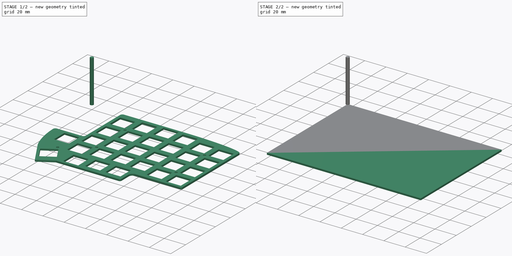
[diagram: build sequence overview — one tinted view per stage of 2, left to right]
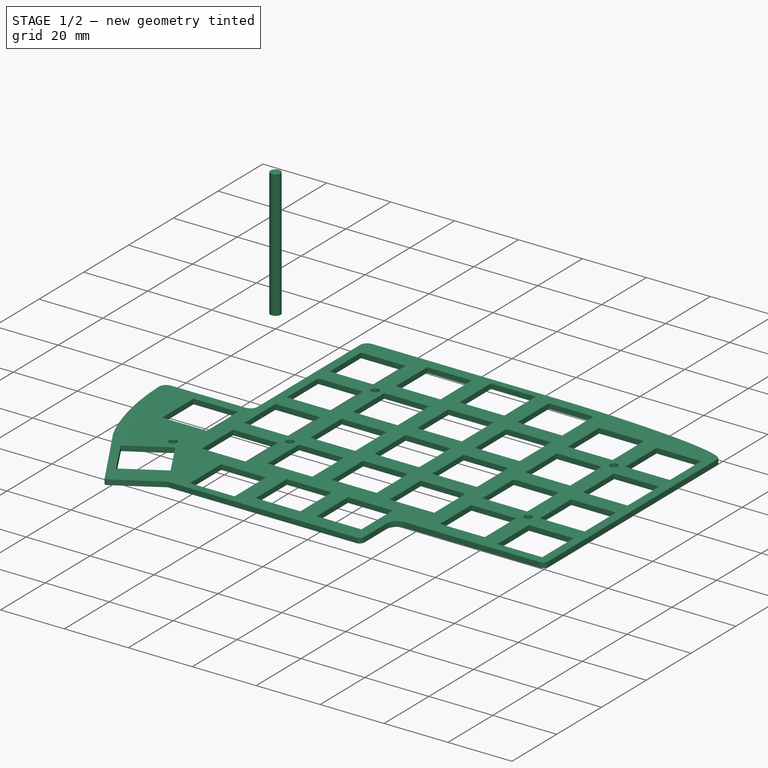
[diagram: stage 1 of 2 — iso view after this stage's code; geometry added in this stage tinted green]
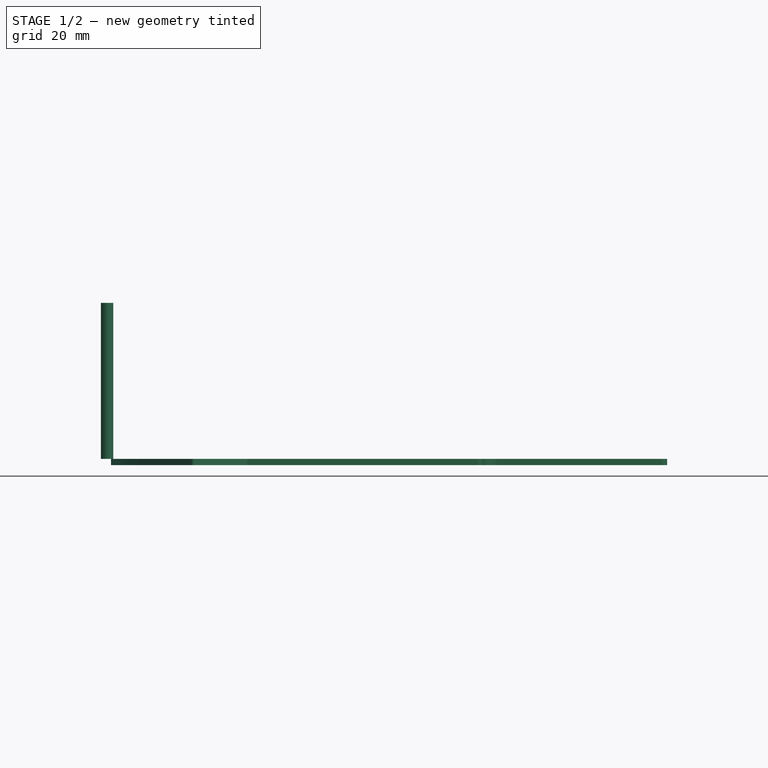
[diagram: stage 1 of 2 — front view after this stage's code; geometry added in this stage tinted green]
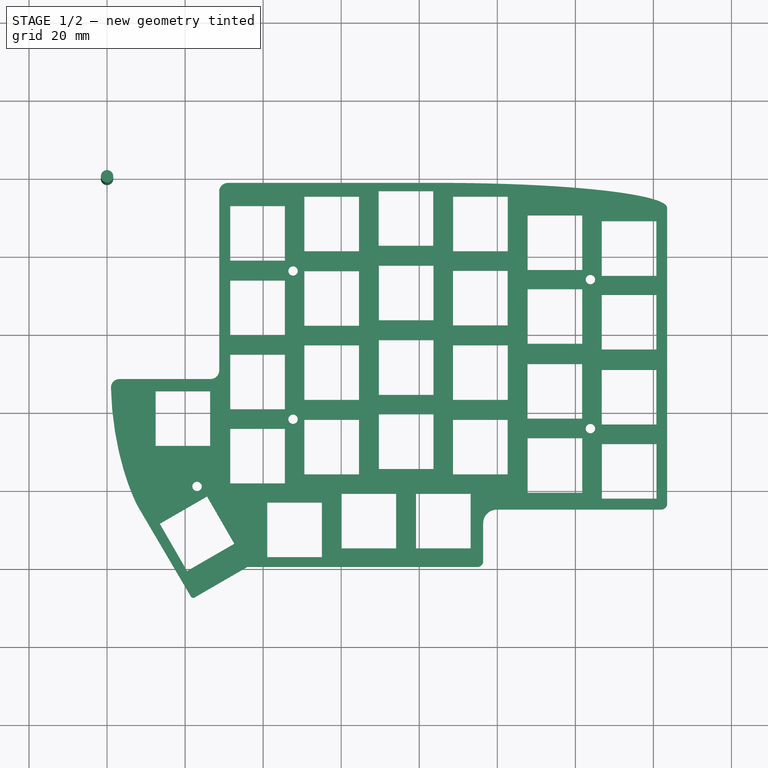
[diagram: stage 1 of 2 — top view after this stage's code; geometry added in this stage tinted green]
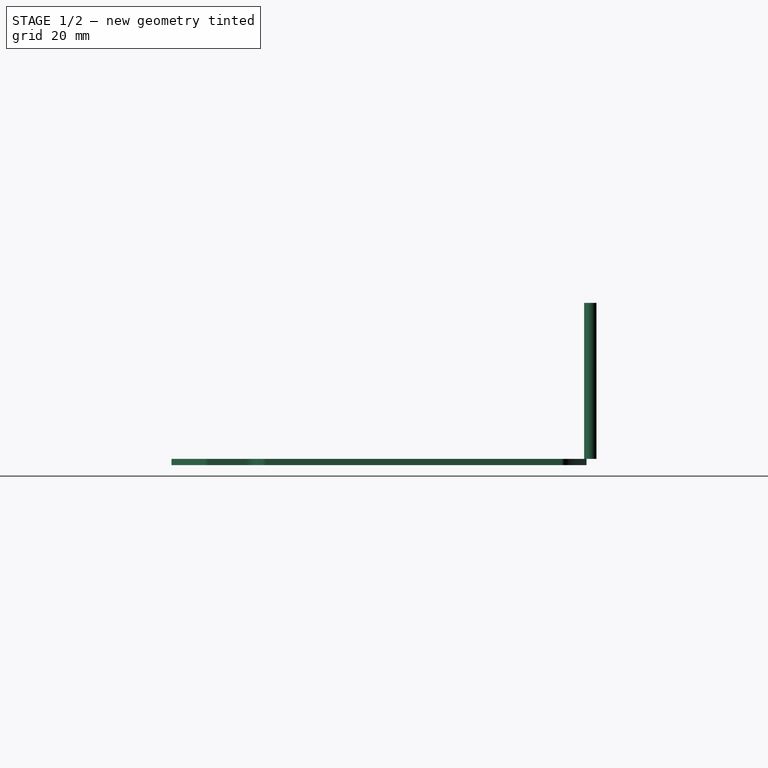
[diagram: stage 1 of 2 — right view after this stage's code; geometry added in this stage tinted green]
FCSTD DOCUMENT  (FreeCAD 0.19R0.19.1)
Label: Top_Plate
License: All rights reserved
LicenseURL: http://en.wikipedia.org/wiki/All_rights_reserved
objects: Path::FeaturePython×6, Part::FeaturePython×4, App::Part×3, App::DocumentObjectGroup×2, PartDesign::CoordinateSystem×1, Part::Feature×1, Sketcher::SketchObject×1, App::FeaturePython×1, Path::FeatureCompoundPython×1
note: 10 computed .brp shape members not serialized (recipe doc carries the construction recipe); baked Part::Feature solids carry a one-line shape summary decoded from their .brp

FEATURE [PartDesign::CoordinateSystem] Local_CS_fc3b
  AttacherType = Attacher::AttachEngine3D
FEATURE [Part::Feature] Pcb_fc3b
  shape: bbox 142.5 x 106.3 x 1.6 mm, 267 faces (baked)
FEATURE [Sketcher::SketchObject] PCB_Sketch_fc3b
  FullyConstrained = false
  sketch-geometry (260):
    g0: LineSegment StartX=112.247 StartY=-115.853 StartZ=0 EndX=112.277 EndY=-115.573 EndZ=0
    g1: LineSegment StartX=44.8131 StartY=-19.9689 StartZ=0 EndX=44.6404 EndY=-20.375 EndZ=0
    g2: LineSegment StartX=44.6404 StartY=-20.8392 StartZ=0 EndX=44.6404 EndY=-20.375 EndZ=0
    g3: LineSegment StartX=44.6404 StartY=-66.6835 StartZ=0 EndX=44.6404 EndY=-20.8392 EndZ=0
    g4: LineSegment StartX=46.3964 StartY=-18.6703 StartZ=0 EndX=45.9834 EndY=-18.7984 EndZ=0
    g5: LineSegment StartX=46.84 StartY=-18.6256 StartZ=0 EndX=46.3964 EndY=-18.6703 EndZ=0
    g6: LineSegment StartX=45.0158 StartY=-19.5951 StartZ=0 EndX=44.8131 EndY=-19.9689 EndZ=0
    g7: LineSegment StartX=45.2843 StartY=-19.2696 StartZ=0 EndX=45.0158 EndY=-19.5951 EndZ=0
    g8: LineSegment StartX=45.6098 StartY=-19.0011 StartZ=0 EndX=45.2843 EndY=-19.2696 EndZ=0
    g9: LineSegment StartX=45.9834 StartY=-18.7984 StartZ=0 EndX=45.6098 EndY=-19.0011 EndZ=0
    g10: LineSegment StartX=142.658 StartY=-42.4393 StartZ=0 EndX=142.658 EndY=-28.4389 EndZ=0
    g11: LineSegment StartX=142.658 StartY=-28.4389 StartZ=0 EndX=156.658 EndY=-28.4389 EndZ=0
    g12: LineSegment StartX=156.658 StartY=-42.4393 StartZ=0 EndX=142.658 EndY=-42.4393 EndZ=0
    g13: LineSegment StartX=156.658 StartY=-28.4389 StartZ=0 EndX=156.658 EndY=-42.4393 EndZ=0
    g14: LineSegment StartX=115.765 StartY=-18.8253 StartZ=0 EndX=112.947 EndY=-18.7545 EndZ=0
    g15: LineSegment StartX=118.528 StartY=-18.9108 StartZ=0 EndX=115.765 EndY=-18.8253 EndZ=0
    g16: LineSegment StartX=121.234 StartY=-19.0106 StartZ=0 EndX=118.528 EndY=-18.9108 EndZ=0
    g17: LineSegment StartX=159.418 StartY=-24.9756 StartZ=0 EndX=159.418 EndY=-100.829 EndZ=0
    g18: LineSegment StartX=104.207 StartY=-18.6339 StartZ=0 EndX=101.209 EndY=-18.6256 EndZ=0
    g19: LineSegment StartX=156.658 StartY=-61.3382 StartZ=0 EndX=142.658 EndY=-61.3382 EndZ=0
    g20: LineSegment StartX=158.22 StartY=-102.298 StartZ=0 EndX=157.918 EndY=-102.329 EndZ=0
    g21: LineSegment StartX=158.502 StartY=-102.211 StartZ=0 EndX=158.22 EndY=-102.298 EndZ=0
    g22: LineSegment StartX=131.404 StartY=-19.5443 StartZ=0 EndX=128.966 EndY=-19.3914 EndZ=0
    g23: LineSegment StartX=133.766 StartY=-19.7093 StartZ=0 EndX=131.404 EndY=-19.5443 EndZ=0
    g24: LineSegment StartX=136.047 StartY=-19.8863 StartZ=0 EndX=133.766 EndY=-19.7093 EndZ=0
    g25: LineSegment StartX=138.246 StartY=-20.0747 StartZ=0 EndX=136.047 EndY=-19.8863 EndZ=0
    g26: LineSegment StartX=140.358 StartY=-20.2742 StartZ=0 EndX=138.246 EndY=-20.0747 EndZ=0
    g27: LineSegment StartX=142.379 StartY=-20.4844 StartZ=0 EndX=140.358 EndY=-20.2742 EndZ=0
    g28: LineSegment StartX=144.305 StartY=-20.7049 StartZ=0 EndX=142.379 EndY=-20.4844 EndZ=0
    g29: LineSegment StartX=146.134 StartY=-20.9352 StartZ=0 EndX=144.305 EndY=-20.7049 EndZ=0
    g30: LineSegment StartX=147.862 StartY=-21.1751 StartZ=0 EndX=146.134 EndY=-20.9352 EndZ=0
    g31: LineSegment StartX=149.484 StartY=-21.424 StartZ=0 EndX=147.862 EndY=-21.1751 EndZ=0
    g32: LineSegment StartX=150.997 StartY=-21.6816 StartZ=0 EndX=149.484 EndY=-21.424 EndZ=0
    g33: LineSegment StartX=152.398 StartY=-21.9476 StartZ=0 EndX=150.997 EndY=-21.6816 EndZ=0
    g34: LineSegment StartX=153.682 StartY=-22.2214 StartZ=0 EndX=152.398 EndY=-21.9476 EndZ=0
    g35: LineSegment StartX=154.847 StartY=-22.5027 StartZ=0 EndX=153.682 EndY=-22.2214 EndZ=0
    g36: LineSegment StartX=155.889 StartY=-22.7911 StartZ=0 EndX=154.847 EndY=-22.5027 EndZ=0
    g37: LineSegment StartX=156.803 StartY=-23.0863 StartZ=0 EndX=155.889 EndY=-22.7911 EndZ=0
    g38: LineSegment StartX=157.587 StartY=-23.3877 StartZ=0 EndX=156.803 EndY=-23.0863 EndZ=0
    g39: LineSegment StartX=158.236 StartY=-23.695 StartZ=0 EndX=157.587 EndY=-23.3877 EndZ=0
    g40: LineSegment StartX=158.748 StartY=-24.0079 StartZ=0 EndX=158.236 EndY=-23.695 EndZ=0
    g41: LineSegment StartX=159.118 StartY=-24.3259 StartZ=0 EndX=158.748 EndY=-24.0079 EndZ=0
    g42: LineSegment StartX=159.342 StartY=-24.6486 StartZ=0 EndX=159.118 EndY=-24.3259 EndZ=0
    g43: LineSegment StartX=159.418 StartY=-24.9756 StartZ=0 EndX=159.342 EndY=-24.6486 EndZ=0
    g44: LineSegment StartX=142.658 StartY=-61.3382 StartZ=0 EndX=142.658 EndY=-47.3402 EndZ=0
    g45: LineSegment StartX=95.0595 StartY=-107.863 StartZ=0 EndX=95.0595 EndY=-98.29 EndZ=0
    g46: LineSegment StartX=109.06 StartY=-112.29 StartZ=0 EndX=95.0595 EndY=-112.29 EndZ=0
    g47: LineSegment StartX=107.165 StartY=-18.6584 StartZ=0 EndX=104.207 EndY=-18.6339 EndZ=0
    g48: LineSegment StartX=110.08 StartY=-18.6987 StartZ=0 EndX=107.165 EndY=-18.6584 EndZ=0
    g49: LineSegment StartX=112.947 StartY=-18.7545 StartZ=0 EndX=110.08 EndY=-18.6987 EndZ=0
    g50: LineSegment StartX=51.8211 StartY=-117.051 StartZ=0 EndX=110.777 EndY=-117.051 EndZ=0
    g51: LineSegment StartX=112.277 StartY=-105.829 StartZ=0 EndX=112.277 EndY=-115.573 EndZ=0
    g52: LineSegment StartX=111.08 StartY=-117.02 StartZ=0 EndX=110.777 EndY=-117.051 EndZ=0
    g53: LineSegment StartX=111.361 StartY=-116.933 StartZ=0 EndX=111.08 EndY=-117.02 EndZ=0
    g54: LineSegment StartX=111.616 StartY=-116.795 StartZ=0 EndX=111.361 EndY=-116.933 EndZ=0
    g55: LineSegment StartX=25.6325 StartY=-104.633 StartZ=0 EndX=27.3141 EndY=-107.494 EndZ=0
    g56: LineSegment StartX=23.9508 StartY=-101.771 StartZ=0 EndX=25.6325 EndY=-104.633 EndZ=0
    g57: LineSegment StartX=35.7225 StartY=-121.802 StartZ=0 EndX=37.4042 EndY=-124.663 EndZ=0
    g58: LineSegment StartX=34.0408 StartY=-118.94 StartZ=0 EndX=35.7225 EndY=-121.802 EndZ=0
    g59: LineSegment StartX=32.3592 StartY=-116.079 StartZ=0 EndX=34.0408 EndY=-118.94 EndZ=0
    g60: LineSegment StartX=30.6775 StartY=-113.217 StartZ=0 EndX=32.3592 EndY=-116.079 EndZ=0
    g61: LineSegment StartX=28.9958 StartY=-110.356 StartZ=0 EndX=30.6775 EndY=-113.217 EndZ=0
    g62: LineSegment StartX=27.3141 StartY=-107.494 StartZ=0 EndX=28.9958 EndY=-110.356 EndZ=0
    g63: LineSegment StartX=66.4601 StartY=-60.2406 StartZ=0 EndX=80.4603 EndY=-60.2406 EndZ=0
    g64: LineSegment StartX=66.4601 StartY=-74.2406 StartZ=0 EndX=66.4601 EndY=-60.2406 EndZ=0
    g65: LineSegment StartX=80.4603 StartY=-74.2406 StartZ=0 EndX=66.4601 EndY=-74.2406 EndZ=0
    g66: LineSegment StartX=80.4603 StartY=-79.3391 StartZ=0 EndX=80.4603 EndY=-93.3391 EndZ=0
    g67: LineSegment StartX=66.4601 StartY=-79.3391 StartZ=0 EndX=80.4603 EndY=-79.3391 EndZ=0
    g68: LineSegment StartX=66.4601 StartY=-93.3391 StartZ=0 EndX=66.4601 EndY=-79.3391 EndZ=0
    g69: LineSegment StartX=80.4603 StartY=-93.3391 StartZ=0 EndX=66.4601 EndY=-93.3391 EndZ=0
    g70: LineSegment StartX=70.9587 StartY=-100.539 StartZ=0 EndX=70.9587 EndY=-114.539 EndZ=0
    g71: LineSegment StartX=56.9585 StartY=-100.539 StartZ=0 EndX=70.9587 EndY=-100.539 EndZ=0
    g72: LineSegment StartX=56.9585 StartY=-114.539 StartZ=0 EndX=56.9585 EndY=-100.539 EndZ=0
    g73: LineSegment StartX=70.9587 StartY=-114.539 StartZ=0 EndX=56.9585 EndY=-114.539 EndZ=0
    g74: LineSegment StartX=89.9592 StartY=-98.2889 StartZ=0 EndX=89.9592 EndY=-112.289 EndZ=0
    g75: LineSegment StartX=75.959 StartY=-98.2889 StartZ=0 EndX=89.9592 EndY=-98.2889 EndZ=0
    g76: LineSegment StartX=75.959 StartY=-112.289 StartZ=0 EndX=75.959 EndY=-98.2889 EndZ=0
    g77: LineSegment StartX=89.9592 StartY=-112.289 StartZ=0 EndX=75.959 EndY=-112.289 EndZ=0
    g78: LineSegment StartX=99.559 StartY=-77.9385 StartZ=0 EndX=99.559 EndY=-91.9385 EndZ=0
    g79: LineSegment StartX=85.5588 StartY=-77.9385 StartZ=0 EndX=99.559 EndY=-77.9385 EndZ=0
    g80: LineSegment StartX=85.5588 StartY=-91.9385 StartZ=0 EndX=85.5588 EndY=-77.9385 EndZ=0
    g81: LineSegment StartX=99.559 StartY=-91.9385 StartZ=0 EndX=85.5588 EndY=-91.9385 EndZ=0
    g82: LineSegment StartX=99.5601 StartY=-58.9383 StartZ=0 EndX=99.5601 EndY=-72.9383 EndZ=0
    g83: LineSegment StartX=85.56 StartY=-58.9383 StartZ=0 EndX=99.5601 EndY=-58.9383 EndZ=0
    g84: LineSegment StartX=85.56 StartY=-72.9383 StartZ=0 EndX=85.56 EndY=-58.9383 EndZ=0
    g85: LineSegment StartX=99.5601 StartY=-72.9383 StartZ=0 EndX=85.56 EndY=-72.9383 EndZ=0
    g86: LineSegment StartX=99.5601 StartY=-39.8401 StartZ=0 EndX=99.5601 EndY=-53.8401 EndZ=0
    g87: LineSegment StartX=85.56 StartY=-39.8401 StartZ=0 EndX=99.5601 EndY=-39.8401 EndZ=0
    g88: LineSegment StartX=85.56 StartY=-53.8401 StartZ=0 EndX=85.56 EndY=-39.8401 EndZ=0
    g89: LineSegment StartX=99.5601 StartY=-53.8401 StartZ=0 EndX=85.56 EndY=-53.8401 EndZ=0
    g90: LineSegment StartX=99.4893 StartY=-20.7495 StartZ=0 EndX=99.4893 EndY=-34.7495 EndZ=0
    g91: LineSegment StartX=85.4891 StartY=-20.7495 StartZ=0 EndX=99.4893 EndY=-20.7495 EndZ=0
    g92: LineSegment StartX=85.4891 StartY=-34.7495 StartZ=0 EndX=85.4891 EndY=-20.7495 EndZ=0
    g93: LineSegment StartX=99.4893 StartY=-34.7495 StartZ=0 EndX=85.4891 EndY=-34.7495 EndZ=0
    g94: LineSegment StartX=118.564 StartY=-22.1389 StartZ=0 EndX=118.564 EndY=-36.1389 EndZ=0
    g95: LineSegment StartX=104.564 StartY=-22.1389 StartZ=0 EndX=118.564 EndY=-22.1389 EndZ=0
    g96: LineSegment StartX=104.564 StartY=-36.1389 StartZ=0 EndX=104.564 EndY=-22.1389 EndZ=0
    g97: LineSegment StartX=118.564 StartY=-36.1389 StartZ=0 EndX=104.564 EndY=-36.1389 EndZ=0
    g98: LineSegment StartX=118.558 StartY=-41.1391 StartZ=0 EndX=118.558 EndY=-55.1391 EndZ=0
    g99: LineSegment StartX=104.558 StartY=-41.1391 StartZ=0 EndX=118.558 EndY=-41.1391 EndZ=0
    g100: LineSegment StartX=104.558 StartY=-55.1391 StartZ=0 EndX=104.558 EndY=-41.1391 EndZ=0
    g101: LineSegment StartX=118.558 StartY=-55.1391 StartZ=0 EndX=104.558 EndY=-55.1391 EndZ=0
    g102: LineSegment StartX=118.56 StartY=-60.2383 StartZ=0 EndX=118.56 EndY=-74.2384 EndZ=0
    g103: LineSegment StartX=104.56 StartY=-60.2383 StartZ=0 EndX=118.56 EndY=-60.2383 EndZ=0
    g104: LineSegment StartX=104.56 StartY=-74.2384 StartZ=0 EndX=104.56 EndY=-60.2383 EndZ=0
    g105: LineSegment StartX=118.56 StartY=-74.2384 StartZ=0 EndX=104.56 EndY=-74.2384 EndZ=0
    g106: LineSegment StartX=118.559 StartY=-79.3393 StartZ=0 EndX=118.559 EndY=-93.3393 EndZ=0
    g107: LineSegment StartX=104.559 StartY=-79.3393 StartZ=0 EndX=118.559 EndY=-79.3393 EndZ=0
    g108: LineSegment StartX=104.559 StartY=-93.3393 StartZ=0 EndX=104.559 EndY=-79.3393 EndZ=0
    g109: LineSegment StartX=118.559 StartY=-93.3393 StartZ=0 EndX=104.559 EndY=-93.3393 EndZ=0
    g110: LineSegment StartX=137.659 StartY=-45.8395 StartZ=0 EndX=137.659 EndY=-59.8396 EndZ=0
    g111: LineSegment StartX=123.659 StartY=-45.8395 StartZ=0 EndX=137.659 EndY=-45.8395 EndZ=0
    g112: LineSegment StartX=123.659 StartY=-59.8396 StartZ=0 EndX=123.659 EndY=-45.8395 EndZ=0
    g113: LineSegment StartX=137.659 StartY=-59.8396 StartZ=0 EndX=123.659 EndY=-59.8396 EndZ=0
    g114: LineSegment StartX=137.645 StartY=-65.0394 StartZ=0 EndX=137.645 EndY=-79.0394 EndZ=0
    g115: LineSegment StartX=123.645 StartY=-65.0394 StartZ=0 EndX=137.645 EndY=-65.0394 EndZ=0
    g116: LineSegment StartX=123.645 StartY=-79.0394 StartZ=0 EndX=123.645 EndY=-65.0394 EndZ=0
    g117: LineSegment StartX=137.645 StartY=-79.0394 StartZ=0 EndX=123.645 EndY=-79.0394 EndZ=0
    g118: LineSegment StartX=137.66 StartY=-84.0383 StartZ=0 EndX=137.66 EndY=-98.0383 EndZ=0
    g119: LineSegment StartX=123.66 StartY=-84.0383 StartZ=0 EndX=137.66 EndY=-84.0383 EndZ=0
    g120: LineSegment StartX=123.66 StartY=-98.0383 StartZ=0 EndX=123.66 EndY=-84.0383 EndZ=0
    g121: LineSegment StartX=137.66 StartY=-98.0383 StartZ=0 EndX=123.66 EndY=-98.0383 EndZ=0
    g122: LineSegment StartX=137.66 StartY=-26.9394 StartZ=0 EndX=137.66 EndY=-40.9395 EndZ=0
    g123: LineSegment StartX=123.66 StartY=-26.9394 StartZ=0 EndX=137.66 EndY=-26.9394 EndZ=0
    g124: LineSegment StartX=123.66 StartY=-40.9395 StartZ=0 EndX=123.66 EndY=-26.9394 EndZ=0
    g125: LineSegment StartX=137.66 StartY=-40.9395 StartZ=0 EndX=123.66 EndY=-40.9395 EndZ=0
    g126: LineSegment StartX=101.209 StartY=-18.6256 StartZ=0 EndX=46.84 EndY=-18.6256 EndZ=0
    g127: LineSegment StartX=23.802 StartY=-101.49 StartZ=0 EndX=23.9508 EndY=-101.771 EndZ=0
    g128: LineSegment StartX=23.6528 StartY=-101.208 StartZ=0 EndX=23.802 EndY=-101.49 EndZ=0
    g129: LineSegment StartX=23.5035 StartY=-100.927 StartZ=0 EndX=23.6528 EndY=-101.208 EndZ=0
    g130: LineSegment StartX=23.3543 StartY=-100.645 StartZ=0 EndX=23.5035 EndY=-100.927 EndZ=0
    g131: LineSegment StartX=23.1259 StartY=-100.141 StartZ=0 EndX=23.3543 EndY=-100.645 EndZ=0
    g132: LineSegment StartX=22.8976 StartY=-99.6367 StartZ=0 EndX=23.1259 EndY=-100.141 EndZ=0
    g133: LineSegment StartX=22.6692 StartY=-99.1324 StartZ=0 EndX=22.8976 EndY=-99.6367 EndZ=0
    g134: LineSegment StartX=22.4408 StartY=-98.6281 StartZ=0 EndX=22.6692 EndY=-99.1324 EndZ=0
    g135: LineSegment StartX=22.1625 StartY=-97.9114 StartZ=0 EndX=22.4408 EndY=-98.6281 EndZ=0
    g136: LineSegment StartX=21.8841 StartY=-97.1947 StartZ=0 EndX=22.1625 EndY=-97.9114 EndZ=0
    g137: LineSegment StartX=21.6058 StartY=-96.478 StartZ=0 EndX=21.8841 EndY=-97.1947 EndZ=0
    g138: LineSegment StartX=21.3274 StartY=-95.7613 StartZ=0 EndX=21.6058 EndY=-96.478 EndZ=0
    g139: LineSegment StartX=21.0283 StartY=-94.8426 StartZ=0 EndX=21.3274 EndY=-95.7613 EndZ=0
    g140: LineSegment StartX=20.7291 StartY=-93.9239 StartZ=0 EndX=21.0283 EndY=-94.8426 EndZ=0
    g141: LineSegment StartX=20.4299 StartY=-93.0053 StartZ=0 EndX=20.7291 EndY=-93.9239 EndZ=0
    g142: LineSegment StartX=20.1307 StartY=-92.0866 StartZ=0 EndX=20.4299 EndY=-93.0053 EndZ=0
    g143: LineSegment StartX=19.8399 StartY=-90.9763 StartZ=0 EndX=20.1307 EndY=-92.0866 EndZ=0
    g144: LineSegment StartX=19.5491 StartY=-89.866 StartZ=0 EndX=19.8399 EndY=-90.9763 EndZ=0
    g145: LineSegment StartX=19.2582 StartY=-88.7558 StartZ=0 EndX=19.5491 EndY=-89.866 EndZ=0
    g146: LineSegment StartX=18.9674 StartY=-87.6455 StartZ=0 EndX=19.2582 EndY=-88.7558 EndZ=0
    g147: LineSegment StartX=18.714 StartY=-86.3541 StartZ=0 EndX=18.9674 EndY=-87.6455 EndZ=0
    g148: LineSegment StartX=18.4607 StartY=-85.0626 StartZ=0 EndX=18.714 EndY=-86.3541 EndZ=0
    g149: LineSegment StartX=18.2073 StartY=-83.7712 StartZ=0 EndX=18.4607 EndY=-85.0626 EndZ=0
    g150: LineSegment StartX=17.9539 StartY=-82.4798 StartZ=0 EndX=18.2073 EndY=-83.7712 EndZ=0
    g151: LineSegment StartX=17.7672 StartY=-81.0176 StartZ=0 EndX=17.9539 EndY=-82.4798 EndZ=0
    g152: LineSegment StartX=17.5805 StartY=-79.5554 StartZ=0 EndX=17.7672 EndY=-81.0176 EndZ=0
    g153: LineSegment StartX=17.3938 StartY=-78.0932 StartZ=0 EndX=17.5805 EndY=-79.5554 EndZ=0
    g154: LineSegment StartX=17.2071 StartY=-76.631 StartZ=0 EndX=17.3938 EndY=-78.0932 EndZ=0
    g155: LineSegment StartX=17.1294 StartY=-75.2447 StartZ=0 EndX=17.2071 EndY=-76.631 EndZ=0
    g156: LineSegment StartX=17.0517 StartY=-73.8584 StartZ=0 EndX=17.1294 EndY=-75.2447 EndZ=0
    g157: LineSegment StartX=16.974 StartY=-72.472 StartZ=0 EndX=17.0517 EndY=-73.8584 EndZ=0
    g158: LineSegment StartX=16.8963 StartY=-71.0857 StartZ=0 EndX=16.974 EndY=-72.472 EndZ=0
    g159: LineSegment StartX=38.234 StartY=-124.91 StartZ=0 EndX=38.4147 EndY=-124.811 EndZ=0
    g160: LineSegment StartX=38.1065 StartY=-124.952 StartZ=0 EndX=38.234 EndY=-124.91 EndZ=0
    g161: LineSegment StartX=37.983 StartY=-124.962 StartZ=0 EndX=38.1065 EndY=-124.952 EndZ=0
    g162: LineSegment StartX=37.869 StartY=-124.961 StartZ=0 EndX=37.983 EndY=-124.962 EndZ=0
    g163: LineSegment StartX=37.7614 StartY=-124.928 StartZ=0 EndX=37.869 EndY=-124.961 EndZ=0
    g164: LineSegment StartX=37.6503 StartY=-124.876 StartZ=0 EndX=37.7614 EndY=-124.928 EndZ=0
    g165: LineSegment StartX=37.4998 StartY=-124.782 StartZ=0 EndX=37.6503 EndY=-124.876 EndZ=0
    g166: LineSegment StartX=37.4042 StartY=-124.663 StartZ=0 EndX=37.4998 EndY=-124.782 EndZ=0
    g167: LineSegment StartX=50.1445 StartY=-118.02 StartZ=0 EndX=51.8211 EndY=-117.051 EndZ=0
    g168: LineSegment StartX=48.4688 StartY=-118.99 StartZ=0 EndX=50.1445 EndY=-118.02 EndZ=0
    g169: LineSegment StartX=46.7931 StartY=-119.96 StartZ=0 EndX=48.4688 EndY=-118.99 EndZ=0
    g170: LineSegment StartX=45.1175 StartY=-120.93 StartZ=0 EndX=46.7931 EndY=-119.96 EndZ=0
    g171: LineSegment StartX=43.4418 StartY=-121.9 StartZ=0 EndX=45.1175 EndY=-120.93 EndZ=0
    g172: LineSegment StartX=41.7661 StartY=-122.87 StartZ=0 EndX=43.4418 EndY=-121.9 EndZ=0
    g173: LineSegment StartX=40.0904 StartY=-123.84 StartZ=0 EndX=41.7661 EndY=-122.87 EndZ=0
    g174: LineSegment StartX=38.4147 StartY=-124.811 StartZ=0 EndX=40.0904 EndY=-123.84 EndZ=0
    g175: LineSegment StartX=66.4592 StartY=-41.2396 StartZ=0 EndX=80.4594 EndY=-41.2396 EndZ=0
    g176: LineSegment StartX=66.4592 StartY=-55.2396 StartZ=0 EndX=66.4592 EndY=-41.2396 EndZ=0
    g177: LineSegment StartX=80.4594 StartY=-55.2396 StartZ=0 EndX=66.4592 EndY=-55.2396 EndZ=0
    g178: LineSegment StartX=80.4603 StartY=-60.2406 StartZ=0 EndX=80.4603 EndY=-74.2406 EndZ=0
    g179: LineSegment StartX=80.4594 StartY=-36.1389 StartZ=0 EndX=66.4592 EndY=-36.1389 EndZ=0
    g180: LineSegment StartX=80.4594 StartY=-41.2396 StartZ=0 EndX=80.4594 EndY=-55.2396 EndZ=0
    g181: LineSegment StartX=61.4591 StartY=-24.5391 StartZ=0 EndX=61.4591 EndY=-38.5392 EndZ=0
    g182: LineSegment StartX=47.4589 StartY=-24.5391 StartZ=0 EndX=61.4591 EndY=-24.5391 EndZ=0
    g183: LineSegment StartX=47.4589 StartY=-38.5392 StartZ=0 EndX=47.4589 EndY=-24.5391 EndZ=0
    g184: LineSegment StartX=61.4591 StartY=-38.5392 StartZ=0 EndX=47.4589 EndY=-38.5392 EndZ=0
    g185: LineSegment StartX=80.4594 StartY=-22.1389 StartZ=0 EndX=80.4594 EndY=-36.1389 EndZ=0
    g186: LineSegment StartX=66.4592 StartY=-22.1389 StartZ=0 EndX=80.4594 EndY=-22.1389 EndZ=0
    g187: LineSegment StartX=66.4592 StartY=-36.1389 StartZ=0 EndX=66.4592 EndY=-22.1389 EndZ=0
    g188: LineSegment StartX=61.4601 StartY=-43.6405 StartZ=0 EndX=61.4601 EndY=-57.6405 EndZ=0
    g189: LineSegment StartX=47.4599 StartY=-43.6405 StartZ=0 EndX=61.4601 EndY=-43.6405 EndZ=0
    g190: LineSegment StartX=47.4599 StartY=-57.6405 StartZ=0 EndX=47.4599 EndY=-43.6405 EndZ=0
    g191: LineSegment StartX=61.4601 StartY=-57.6405 StartZ=0 EndX=47.4599 EndY=-57.6405 EndZ=0
    g192: LineSegment StartX=19.0957 StartY=-68.8834 StartZ=0 EndX=42.4408 EndY=-68.8836 EndZ=0
    g193: LineSegment StartX=42.3115 StartY=-72.0394 StartZ=0 EndX=42.3115 EndY=-86.0394 EndZ=0
    g194: LineSegment StartX=28.3593 StartY=-72.0394 StartZ=0 EndX=42.3115 EndY=-72.0394 EndZ=0
    g195: LineSegment StartX=28.3593 StartY=-86.0394 StartZ=0 EndX=28.3593 EndY=-72.0394 EndZ=0
    g196: LineSegment StartX=42.3115 StartY=-86.0394 StartZ=0 EndX=28.3593 EndY=-86.0394 EndZ=0
    g197: LineSegment StartX=41.5217 StartY=-98.9766 StartZ=0 EndX=48.5218 EndY=-111.101 EndZ=0
    g198: LineSegment StartX=29.3972 StartY=-105.977 StartZ=0 EndX=41.5217 EndY=-98.9766 EndZ=0
    g199: LineSegment StartX=36.3972 StartY=-118.101 StartZ=0 EndX=29.3972 EndY=-105.977 EndZ=0
    g200: LineSegment StartX=48.5218 StartY=-111.101 StartZ=0 EndX=36.3972 EndY=-118.101 EndZ=0
    g201: LineSegment StartX=61.4591 StartY=-81.6406 StartZ=0 EndX=61.4591 EndY=-95.6406 EndZ=0
    g202: LineSegment StartX=47.4589 StartY=-81.6406 StartZ=0 EndX=61.4591 EndY=-81.6406 EndZ=0
    g203: LineSegment StartX=47.4589 StartY=-95.6406 StartZ=0 EndX=47.4589 EndY=-81.6406 EndZ=0
    g204: LineSegment StartX=61.4591 StartY=-95.6406 StartZ=0 EndX=47.4589 EndY=-95.6406 EndZ=0
    g205: LineSegment StartX=61.4591 StartY=-62.6376 StartZ=0 EndX=61.4591 EndY=-76.6376 EndZ=0
    g206: LineSegment StartX=47.4589 StartY=-62.6376 StartZ=0 EndX=61.4591 EndY=-62.6376 EndZ=0
    g207: LineSegment StartX=47.4589 StartY=-76.6376 StartZ=0 EndX=47.4589 EndY=-62.6376 EndZ=0
    g208: LineSegment StartX=61.4591 StartY=-76.6376 StartZ=0 EndX=47.4589 EndY=-76.6376 EndZ=0
    g209: LineSegment StartX=44.4677 StartY=-67.5403 StartZ=0 EndX=44.5958 EndY=-67.1272 EndZ=0
    g210: LineSegment StartX=44.265 StartY=-67.914 StartZ=0 EndX=44.4677 EndY=-67.5403 EndZ=0
    g211: LineSegment StartX=43.9965 StartY=-68.2395 StartZ=0 EndX=44.265 EndY=-67.914 EndZ=0
    g212: LineSegment StartX=43.6711 StartY=-68.508 StartZ=0 EndX=43.9965 EndY=-68.2395 EndZ=0
    g213: LineSegment StartX=43.2974 StartY=-68.7107 StartZ=0 EndX=43.6711 EndY=-68.508 EndZ=0
    g214: LineSegment StartX=42.8844 StartY=-68.8388 StartZ=0 EndX=43.2974 EndY=-68.7107 EndZ=0
    g215: LineSegment StartX=42.4408 StartY=-68.8836 StartZ=0 EndX=42.8844 EndY=-68.8388 EndZ=0
    g216: LineSegment StartX=44.5958 StartY=-67.1272 StartZ=0 EndX=44.6404 EndY=-66.6835 EndZ=0
    g217: LineSegment StartX=19.0957 StartY=-68.8834 StartZ=0 EndX=18.6476 EndY=-68.9277 EndZ=0
    g218: LineSegment StartX=17.2676 StartY=-69.8473 StartZ=0 EndX=17.0668 EndY=-70.2217 EndZ=0
    g219: LineSegment StartX=17.5344 StartY=-69.5225 StartZ=0 EndX=17.2676 EndY=-69.8473 EndZ=0
    g220: LineSegment StartX=17.8588 StartY=-69.2554 StartZ=0 EndX=17.5344 EndY=-69.5225 EndZ=0
    g221: LineSegment StartX=18.2326 StartY=-69.0544 StartZ=0 EndX=17.8588 EndY=-69.2554 EndZ=0
    g222: LineSegment StartX=18.6476 StartY=-68.9277 StartZ=0 EndX=18.2326 EndY=-69.0544 EndZ=0
    g223: LineSegment StartX=16.9403 StartY=-70.6373 StartZ=0 EndX=16.8963 EndY=-71.0857 EndZ=0
    g224: LineSegment StartX=17.0668 StartY=-70.2217 StartZ=0 EndX=16.9403 EndY=-70.6373 EndZ=0
    g225: LineSegment StartX=156.709 StartY=-99.5392 StartZ=0 EndX=142.709 EndY=-99.5392 EndZ=0
    g226: LineSegment StartX=156.709 StartY=-85.5392 StartZ=0 EndX=156.709 EndY=-99.5392 EndZ=0
    g227: LineSegment StartX=142.709 StartY=-85.5392 StartZ=0 EndX=156.709 EndY=-85.5392 EndZ=0
    g228: LineSegment StartX=142.709 StartY=-99.5392 StartZ=0 EndX=142.709 EndY=-85.5392 EndZ=0
    g229: LineSegment StartX=142.66 StartY=-80.5406 StartZ=0 EndX=142.66 EndY=-66.5405 EndZ=0
    g230: LineSegment StartX=156.66 StartY=-80.5406 StartZ=0 EndX=142.66 EndY=-80.5406 EndZ=0
    g231: LineSegment StartX=156.66 StartY=-66.5405 StartZ=0 EndX=156.66 EndY=-80.5406 EndZ=0
    g232: LineSegment StartX=142.66 StartY=-66.5405 StartZ=0 EndX=156.66 EndY=-66.5405 EndZ=0
    g233: LineSegment StartX=111.838 StartY=-116.611 StartZ=0 EndX=111.616 EndY=-116.795 EndZ=0
    g234: LineSegment StartX=112.021 StartY=-116.389 StartZ=0 EndX=111.838 EndY=-116.611 EndZ=0
    g235: LineSegment StartX=112.159 StartY=-116.135 StartZ=0 EndX=112.021 EndY=-116.389 EndZ=0
    g236: LineSegment StartX=112.247 StartY=-115.853 StartZ=0 EndX=112.159 EndY=-116.135 EndZ=0
    g237: LineSegment StartX=115.777 StartY=-102.329 StartZ=0 EndX=157.918 EndY=-102.329 EndZ=0
    g238: LineSegment StartX=115.071 StartY=-102.4 StartZ=0 EndX=115.777 EndY=-102.329 EndZ=0
    g239: LineSegment StartX=114.414 StartY=-102.603 StartZ=0 EndX=115.071 EndY=-102.4 EndZ=0
    g240: LineSegment StartX=113.82 StartY=-102.926 StartZ=0 EndX=114.414 EndY=-102.603 EndZ=0
    g241: LineSegment StartX=113.302 StartY=-103.353 StartZ=0 EndX=113.82 EndY=-102.926 EndZ=0
    g242: LineSegment StartX=112.875 StartY=-103.871 StartZ=0 EndX=113.302 EndY=-103.353 EndZ=0
    g243: LineSegment StartX=112.552 StartY=-104.466 StartZ=0 EndX=112.875 EndY=-103.871 EndZ=0
    g244: LineSegment StartX=112.348 StartY=-105.123 StartZ=0 EndX=112.552 EndY=-104.466 EndZ=0
    g245: LineSegment StartX=112.277 StartY=-105.829 StartZ=0 EndX=112.348 EndY=-105.123 EndZ=0
    g246: LineSegment StartX=123.877 StartY=-19.1242 StartZ=0 EndX=121.234 EndY=-19.0106 EndZ=0
    g247: LineSegment StartX=126.456 StartY=-19.2513 StartZ=0 EndX=123.877 EndY=-19.1242 EndZ=0
    g248: LineSegment StartX=128.966 StartY=-19.3914 StartZ=0 EndX=126.456 EndY=-19.2513 EndZ=0
    g249: LineSegment StartX=156.658 StartY=-47.3402 StartZ=0 EndX=156.658 EndY=-61.3382 EndZ=0
    g250: LineSegment StartX=158.757 StartY=-102.073 StartZ=0 EndX=158.502 EndY=-102.211 EndZ=0
    g251: LineSegment StartX=158.979 StartY=-101.889 StartZ=0 EndX=158.757 EndY=-102.073 EndZ=0
    g252: LineSegment StartX=159.162 StartY=-101.668 StartZ=0 EndX=158.979 EndY=-101.889 EndZ=0
    g253: LineSegment StartX=159.3 StartY=-101.413 StartZ=0 EndX=159.162 EndY=-101.668 EndZ=0
    g254: LineSegment StartX=159.387 StartY=-101.131 StartZ=0 EndX=159.3 EndY=-101.413 EndZ=0
    g255: LineSegment StartX=159.418 StartY=-100.829 StartZ=0 EndX=159.387 EndY=-101.131 EndZ=0
    g256: LineSegment StartX=95.0595 StartY=-98.29 StartZ=0 EndX=109.06 EndY=-98.29 EndZ=0
    g257: LineSegment StartX=95.0595 StartY=-112.29 StartZ=0 EndX=95.0595 EndY=-107.863 EndZ=0
    g258: LineSegment StartX=142.658 StartY=-47.3402 StartZ=0 EndX=156.658 EndY=-47.3402 EndZ=0
    g259: LineSegment StartX=109.06 StartY=-98.29 StartZ=0 EndX=109.06 EndY=-112.29 EndZ=0
  constraints (260):
    c: Coincident(g223,g158)
    c: Coincident(g223,g224)
    c: Coincident(g158,g157)
    c: Coincident(g156,g157)
    c: Coincident(g224,g218)
    c: Coincident(g155,g156)
    c: Coincident(g155,g154)
    c: Coincident(g218,g219)
    c: Coincident(g154,g153)
    c: Coincident(g220,g219)
    c: Coincident(g152,g153)
    c: Coincident(g152,g151)
    c: Coincident(g221,g220)
    c: Coincident(g150,g151)
    c: Coincident(g150,g149)
    c: Coincident(g221,g222)
    c: Coincident(g148,g149)
    c: Coincident(g222,g217)
    c: Coincident(g148,g147)
    c: Coincident(g147,g146)
    c: Coincident(g192,g217)
    c: Coincident(g146,g145)
    c: Coincident(g144,g145)
    c: Coincident(g144,g143)
    c: Coincident(g143,g142)
    c: Coincident(g141,g142)
    c: Coincident(g141,g140)
    c: Coincident(g140,g139)
    c: Coincident(g139,g138)
    c: Coincident(g138,g137)
    c: Coincident(g137,g136)
    c: Coincident(g135,g136)
    c: Coincident(g135,g134)
    c: Coincident(g133,g134)
    c: Coincident(g132,g133)
    c: Coincident(g132,g131)
    c: Coincident(g130,g131)
    c: Coincident(g129,g130)
    c: Coincident(g128,g129)
    c: Coincident(g128,g127)
    c: Coincident(g56,g127)
    c: Coincident(g55,g56)
    c: Coincident(g55,g62)
    c: Coincident(g196,g195)
    c: Coincident(g194,g195)
    c: Coincident(g62,g61)
    c: Coincident(g199,g198)
    c: Coincident(g61,g60)
    c: Coincident(g60,g59)
    c: Coincident(g59,g58)
    c: Coincident(g58,g57)
    c: Coincident(g200,g199)
    c: Coincident(g166,g57)
    c: Coincident(g166,g165)
    c: Coincident(g165,g164)
    c: Coincident(g163,g164)
    c: Coincident(g162,g163)
    c: Coincident(g161,g162)
    c: Coincident(g160,g161)
    c: Coincident(g160,g159)
    c: Coincident(g159,g174)
    c: Coincident(g173,g174)
    c: Coincident(g198,g197)
    c: Coincident(g172,g173)
    c: Coincident(g196,g193)
    c: Coincident(g193,g194)
    c: Coincident(g192,g215)
    c: Coincident(g214,g215)
    c: Coincident(g214,g213)
    c: Coincident(g171,g172)
    c: Coincident(g212,g213)
    c: Coincident(g211,g212)
    c: Coincident(g211,g210)
    c: Coincident(g209,g210)
    c: Coincident(g216,g209)
    c: Coincident(g3,g216)
    c: Coincident(g2,g3)
    c: Coincident(g1,g2)
    c: Coincident(g1,g6)
    c: Coincident(g6,g7)
    c: Coincident(g170,g171)
    c: Coincident(g7,g8)
    c: Coincident(g8,g9)
    c: Coincident(g4,g9)
    c: Coincident(g4,g5)
    c: Coincident(g169,g170)
    c: Coincident(g126,g5)
    c: Coincident(g204,g203)
    c: Coincident(g203,g202)
    c: Coincident(g208,g207)
    c: Coincident(g206,g207)
    c: Coincident(g191,g190)
    c: Coincident(g189,g190)
    c: Coincident(g184,g183)
    c: Coincident(g182,g183)
    c: Coincident(g168,g169)
    c: Coincident(g200,g197)
    c: Coincident(g167,g168)
    c: Coincident(g50,g167)
    c: Coincident(g73,g72)
    c: Coincident(g72,g71)
    c: Coincident(g201,g204)
    c: Coincident(g202,g201)
    c: Coincident(g208,g205)
    c: Coincident(g206,g205)
    c: Coincident(g191,g188)
    c: Coincident(g189,g188)
    c: Coincident(g181,g184)
    c: Coincident(g181,g182)
    c: Coincident(g69,g68)
    c: Coincident(g68,g67)
    c: Coincident(g64,g65)
    c: Coincident(g64,g63)
    c: Coincident(g177,g176)
    c: Coincident(g176,g175)
    c: Coincident(g179,g187)
    c: Coincident(g186,g187)
    c: Coincident(g70,g73)
    c: Coincident(g70,g71)
    c: Coincident(g77,g76)
    c: Coincident(g76,g75)
    c: Coincident(g66,g69)
    c: Coincident(g66,g67)
    c: Coincident(g178,g65)
    c: Coincident(g63,g178)
    c: Coincident(g177,g180)
    c: Coincident(g175,g180)
    c: Coincident(g179,g185)
    c: Coincident(g185,g186)
    c: Coincident(g93,g92)
    c: Coincident(g91,g92)
    c: Coincident(g81,g80)
    c: Coincident(g79,g80)
    c: Coincident(g84,g85)
    c: Coincident(g84,g83)
    c: Coincident(g89,g88)
    c: Coincident(g87,g88)
    c: Coincident(g77,g74)
    c: Coincident(g75,g74)
    c: Coincident(g46,g257)
    c: Coincident(g45,g257)
    c: Coincident(g45,g256)
    c: Coincident(g93,g90)
    c: Coincident(g90,g91)
    c: Coincident(g78,g81)
    c: Coincident(g79,g78)
    c: Coincident(g85,g82)
    c: Coincident(g83,g82)
    c: Coincident(g89,g86)
    c: Coincident(g86,g87)
    c: Coincident(g18,g126)
    c: Coincident(g18,g47)
    c: Coincident(g108,g109)
    c: Coincident(g108,g107)
    c: Coincident(g104,g105)
    c: Coincident(g104,g103)
    c: Coincident(g100,g101)
    c: Coincident(g100,g99)
    c: Coincident(g97,g96)
    c: Coincident(g96,g95)
    c: Coincident(g48,g47)
    c: Coincident(g259,g46)
    c: Coincident(g259,g256)
    c: Coincident(g49,g48)
    c: Coincident(g50,g52)
    c: Coincident(g52,g53)
    c: Coincident(g54,g53)
    c: Coincident(g233,g54)
    c: Coincident(g233,g234)
    c: Coincident(g235,g234)
    c: Coincident(g235,g236)
    c: Coincident(g0,g236)
    c: Coincident(g0,g51)
    c: Coincident(g245,g51)
    c: Coincident(g244,g245)
    c: Coincident(g244,g243)
    c: Coincident(g243,g242)
    c: Coincident(g14,g49)
    c: Coincident(g241,g242)
    c: Coincident(g241,g240)
    c: Coincident(g239,g240)
    c: Coincident(g239,g238)
    c: Coincident(g14,g15)
    c: Coincident(g238,g237)
    c: Coincident(g16,g15)
    c: Coincident(g106,g109)
    c: Coincident(g106,g107)
    c: Coincident(g102,g105)
    c: Coincident(g103,g102)
    c: Coincident(g101,g98)
    c: Coincident(g98,g99)
    c: Coincident(g94,g97)
    c: Coincident(g95,g94)
    c: Coincident(g16,g246)
    c: Coincident(g117,g116)
    c: Coincident(g116,g115)
    c: Coincident(g121,g120)
    c: Coincident(g120,g119)
    c: Coincident(g113,g112)
    c: Coincident(g112,g111)
    c: Coincident(g125,g124)
    c: Coincident(g124,g123)
    c: Coincident(g246,g247)
    c: Coincident(g248,g247)
    c: Coincident(g22,g248)
    c: Coincident(g22,g23)
    c: Coincident(g24,g23)
    c: Coincident(g25,g24)
    c: Coincident(g114,g117)
    c: Coincident(g115,g114)
    c: Coincident(g121,g118)
    c: Coincident(g118,g119)
    c: Coincident(g113,g110)
    c: Coincident(g110,g111)
    c: Coincident(g122,g125)
    c: Coincident(g123,g122)
    c: Coincident(g25,g26)
    c: Coincident(g26,g27)
    c: Coincident(g27,g28)
    c: Coincident(g229,g230)
    c: Coincident(g229,g232)
    c: Coincident(g44,g19)
    c: Coincident(g258,g44)
    c: Coincident(g12,g10)
    c: Coincident(g10,g11)
    c: Coincident(g228,g225)
    c: Coincident(g227,g228)
    c: Coincident(g28,g29)
    c: Coincident(g30,g29)
    c: Coincident(g31,g30)
    c: Coincident(g31,g32)
    c: Coincident(g32,g33)
    c: Coincident(g33,g34)
    c: Coincident(g35,g34)
    c: Coincident(g35,g36)
    c: Coincident(g36,g37)
    c: Coincident(g230,g231)
    c: Coincident(g231,g232)
    c: Coincident(g249,g19)
    c: Coincident(g249,g258)
    c: Coincident(g12,g13)
    c: Coincident(g13,g11)
    c: Coincident(g226,g225)
    c: Coincident(g227,g226)
    c: Coincident(g37,g38)
    c: Coincident(g39,g38)
    c: Coincident(g20,g237)
    c: Coincident(g20,g21)
    c: Coincident(g39,g40)
    c: Coincident(g21,g250)
    c: Coincident(g251,g250)
    c: Coincident(g40,g41)
    c: Coincident(g251,g252)
    c: Coincident(g42,g41)
    c: Coincident(g252,g253)
    c: Coincident(g254,g253)
    c: Coincident(g43,g42)
    c: Coincident(g254,g255)
    c: Coincident(g17,g255)
    c: Coincident(g43,g17)
FEATURE [App::Part] Board_Geoms_fc3b
  Group = -> [Local_CS_fc3b,Pcb_fc3b,PCB_Sketch_fc3b]
  Origin = -> Origin
FEATURE [App::Part] Step_Models_fc3b
  Origin = -> Origin002
FEATURE [App::Part] Board_fc3b  label="Lily58_Pro_TOP"
  Group = -> [Board_Geoms_fc3b,Step_Models_fc3b]
  Origin = -> Origin001
FEATURE [App::FeaturePython] SetupSheet  # Path/CAM operation (typed FeaturePython)
  ClearanceHeightExpression = OpStockZMax+SetupSheet.ClearanceHeightOffset
  ClearanceHeightOffset = 5
  CoolantMode = 0
  CoolantModes = None | Flood | Mist
  FinalDepthExpression = OpFinalDepth
  HorizRapid = 0
  SafeHeightExpression = OpStockZMax+SetupSheet.SafeHeightOffset
  SafeHeightOffset = 3
  StartDepthExpression = OpStartDepth
  StepDownExpression = OpToolDiameter
  VertRapid = 0
FEATURE [Part::FeaturePython] Clone  label="Model-Lily58_Pro_TOP"  # Draft clone (typed FeaturePython)
  AttacherType = Attacher::AttachEngine3D
  Fuse = false
  Objects = -> [Board_fc3b]
  PathResource = Model
  Placement = pos=(-15.8963,17.6256,0) rot=(0,0,1;0rad)
  Scale = (1,1,1)
FEATURE [Part::FeaturePython] ToolBit001  label="Carbide_3_175mm_2flute002"  # Path/CAM toolbit (typed FeaturePython)
  BitPropertyNames = Chipload | CuttingEdgeHeight | Diameter | Flutes | Length | Material | ShankDiameter
  BitShape = <path>
  Chipload = 0
  CuttingEdgeHeight = 20
  Diameter = 3.17
  File = <userpath>/.FreeCAD/Tools/Bit/Carbide_3_175mm_2flute.fctb
  Flutes = 2
  Length = 40
  Material = 1
  ShankDiameter = 3.17
  ShapeName = endmill
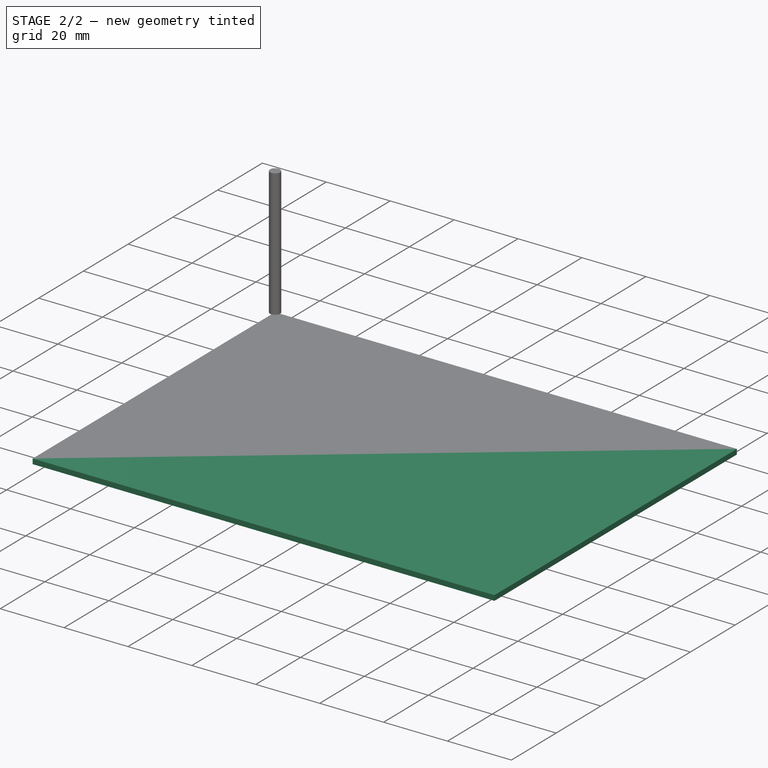
[diagram: stage 2 of 2 — iso view after this stage's code; geometry added in this stage tinted green]
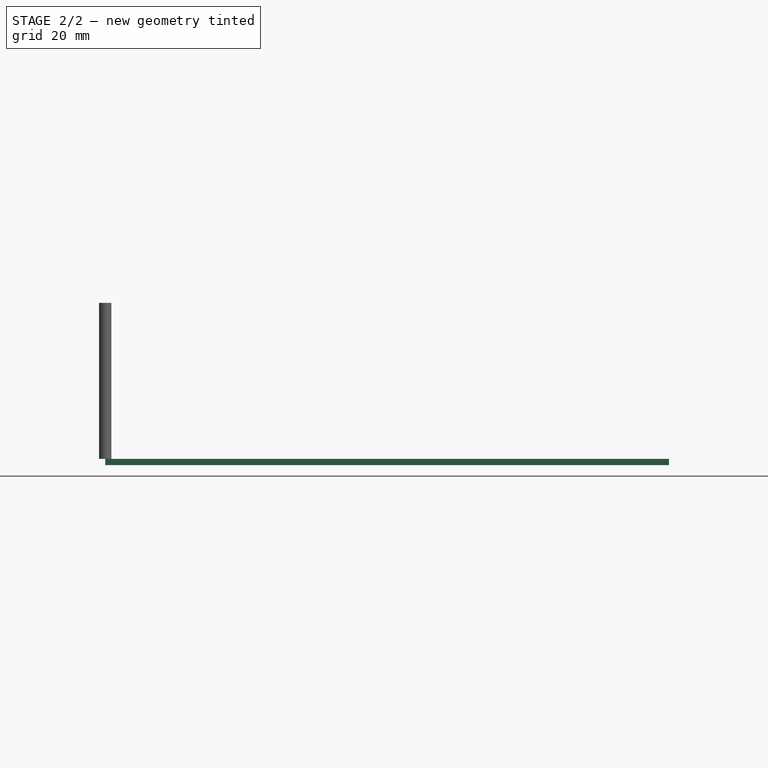
[diagram: stage 2 of 2 — front view after this stage's code; geometry added in this stage tinted green]
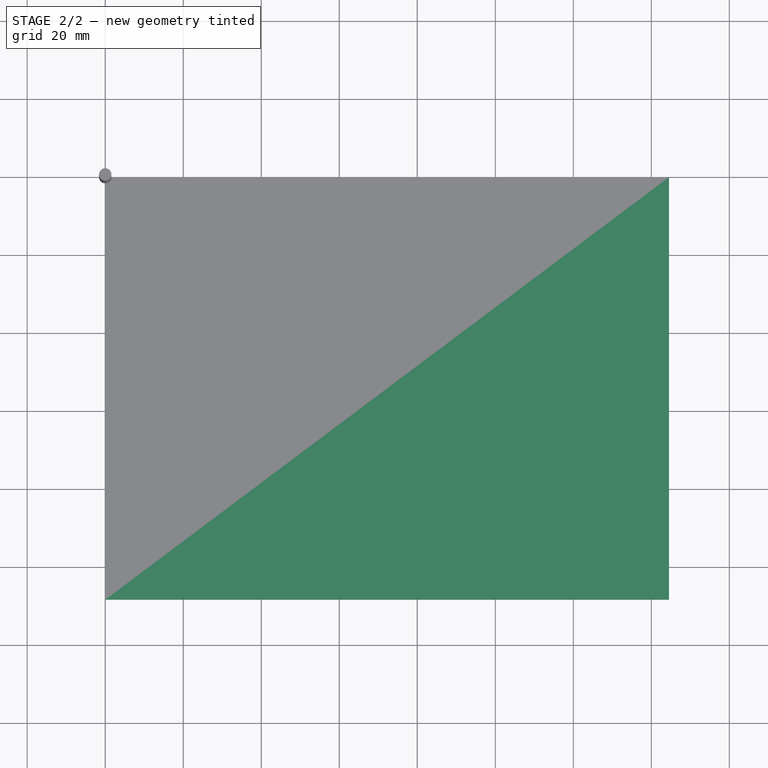
[diagram: stage 2 of 2 — top view after this stage's code; geometry added in this stage tinted green]
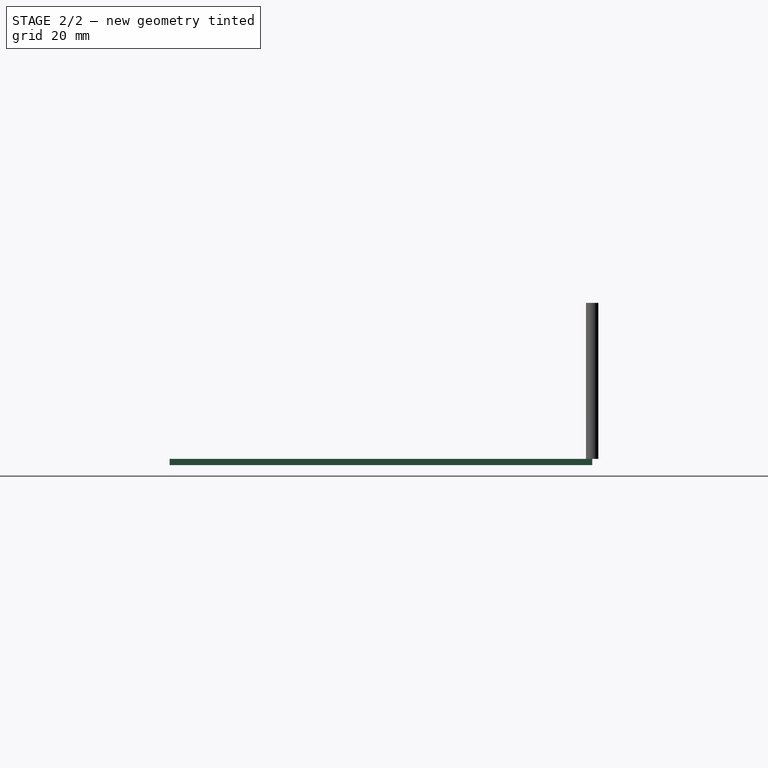
[diagram: stage 2 of 2 — right view after this stage's code; geometry added in this stage tinted green]
FEATURE [App::DocumentObjectGroup] Model
  Group = -> [Clone]
FEATURE [Part::FeaturePython] Stock  # WARN: FeaturePython — macro-defined, semantics opaque (R4)
  Base = -> Model
  ExtXneg = 1
  ExtXpos = 1
  ExtYneg = 1
  ExtYpos = 1
  ExtZneg = 0
  ExtZpos = 0
  Placement = pos=(1,-107.337,-1.6) rot=(0,0,1;0rad)
  StockType = FromBase
FEATURE [Part::FeaturePython] ToolBit002  label="HSS_0_8mm"  # Path/CAM toolbit (typed FeaturePython)
  BitPropertyNames = Chipload | CuttingEdgeHeight | Diameter | Flutes | Length | Material | ShankDiameter
  BitShape = <path>
  Chipload = 0
  CuttingEdgeHeight = 15
  Diameter = 0.8
  File = <userpath>/.FreeCAD/Tools/Bit/HSS_0_8mm.fctb
  Flutes = 0
  Length = 25
  Material = 0
  ShankDiameter = 3
  ShapeName = endmill
FEATURE [Path::FeaturePython] Carbide_3_175mm_2flute002  label="Carbide_3_175mm_2flute003"  # Path/CAM operation (typed FeaturePython)
  HorizFeed = 0
  HorizRapid = 0
  SpindleDir = 0
  SpindleSpeed = 0
  Tool = -> ToolBit001
  ToolNumber = 1
  VertFeed = 0
  VertRapid = 0
  expr: HorizRapid = SetupSheet.HorizRapid
  expr: VertRapid = SetupSheet.VertRapid
FEATURE [Path::FeaturePython] HSS_0_8mm  label="HSS_0_8mm001"  # Path/CAM operation (typed FeaturePython)
  HorizFeed = 0
  HorizRapid = 0
  SpindleDir = 0
  SpindleSpeed = 0
  Tool = -> ToolBit002
  ToolNumber = 1
  VertFeed = 0
  VertRapid = 0
  expr: HorizRapid = SetupSheet.HorizRapid
  expr: VertRapid = SetupSheet.VertRapid
FEATURE [App::DocumentObjectGroup] Tools
  Group = -> [Carbide_3_175mm_2flute002,HSS_0_8mm]
FEATURE [Path::FeaturePython] Profile  label="Screwholes"  # Path/CAM operation (typed FeaturePython)
  Active = true
  AreaParams:
    Tolerance = 1e-07
    FitArcs = True
    Simplify = False
    CleanDistance = 0.0
    Accuracy = 0.01
    Unit = 1.0
    MinArcPoints = 4
    MaxArcPoints = 100
    ClipperScale = 10000000.0
    Fill = 0
    Coplanar = 0
    Reorient = True
    Outline = False
    Explode = False
    OpenMode = 0
    Deflection = 0.01
    SubjectFill = 0
    ClipFill = 0
    Offset = -0.4
    ExtraPass = 0
    Stepover = 0.0
    LastStepover = 0.0
    JoinType = 0
    EndType = 0
    MiterLimit = 2.0
    RoundPrecision = 0.0
    PocketMode = 0
    ToolRadius = 1.0
    PocketExtraOffset = 0.0
    PocketStepover = 0.0
    PocketLastStepover = 0.0
    FromCenter = False
    Angle = 45.0
    AngleShift = 0.0
    Shift = 0.0
    Thicken = False
    SectionCount = -1
    Stepdown = 1.0
    SectionOffset = 0.0
    SectionTolerance = 1e-06
    SectionMode = 2
    Project = False
  AttemptInverseAngle = true
  Base = -> [Clone]
  ClearanceHeight = 5
  CoolantMode = None
  CycleTime = Cycletime Error
  Direction = 0
  EnableRotation = 0
  FinalDepth = -2.4
  HandleMultipleFeatures = 0
  InverseAngle = false
  JoinType = 0
  LimitDepthToFace = true
  MiterLimit = 0.1
  OffsetExtra = 0
  OpFinalDepth = 0
  OpStartDepth = 0.1
  OpStockZMax = 0
  OpStockZMin = -1.6
  OpToolDiameter = 0.8
  PathParams = {'orientation': 0, 'feedrate': 0.0, 'feedrate_v': 0.0, 'verbose': True, 'resume_height': 3.0, 'retraction': 5.0, 'return_end': True, 'preamble': False, 'start': Vector (123.07468455878745, -64.07727606897285, 5.0)}
  ReverseDirection = false
  SafeHeight = 3
  Side = 0
  StartDepth = 0
  StartPoint = (0,0,0)
  StepDown = 0.1
  ToolController = -> HSS_0_8mm
  UseComp = true
  UseStartPoint = false
  processCircles = true
  processHoles = false
  processPerimeter = false
  expr: StartDepth = 0
  expr: FinalDepth = -2.4
  expr: StepDown = 0.1
  expr: SafeHeight = OpStockZMax + SetupSheet.SafeHeightOffset
  expr: ClearanceHeight = OpStockZMax + SetupSheet.ClearanceHeightOffset
FEATURE [Path::FeaturePython] Profile001  label="Keyholes"  # Path/CAM operation (typed FeaturePython)
  Active = true
  AreaParams:
    Tolerance = 1e-07
    FitArcs = True
    Simplify = False
    CleanDistance = 0.0
    Accuracy = 0.01
    Unit = 1.0
    MinArcPoints = 4
    MaxArcPoints = 100
    ClipperScale = 10000000.0
    Fill = 0
    Coplanar = 0
    Reorient = True
    Outline = False
    Explode = False
    OpenMode = 0
    Deflection = 0.01
    SubjectFill = 0
    ClipFill = 0
    Offset = -1.585
    ExtraPass = 0
    Stepover = 0.0
    LastStepover = 0.0
    JoinType = 0
    EndType = 0
    MiterLimit = 2.0
    RoundPrecision = 0.0
    PocketMode = 0
    ToolRadius = 1.0
    PocketExtraOffset = 0.0
    PocketStepover = 0.0
    PocketLastStepover = 0.0
    FromCenter = False
    Angle = 45.0
    AngleShift = 0.0
    Shift = 0.0
    Thicken = False
    SectionCount = -1
    Stepdown = 1.0
    SectionOffset = 0.0
    SectionTolerance = 1e-06
    SectionMode = 2
    Project = False
  AttemptInverseAngle = true
  Base = -> [Clone]
  ClearanceHeight = 5
  CoolantMode = None
  CycleTime = Cycletime Error
  Direction = 0
  EnableRotation = 0
  FinalDepth = -2.2
  HandleMultipleFeatures = 0
  InverseAngle = false
  JoinType = 0
  LimitDepthToFace = true
  MiterLimit = 0.1
  OffsetExtra = 0
  OpFinalDepth = 0
  OpStartDepth = 0.25
  OpStockZMax = 0
  OpStockZMin = -1.6
  OpToolDiameter = 3.17
  PathParams = {'orientation': 0, 'feedrate': 0.0, 'feedrate_v': 0.0, 'verbose': True, 'resume_height': 3.0, 'retraction': 5.0, 'return_end': True, 'preamble': False, 'start': Vector (30.460316600000002, -92.89525459999999, 5.0)}
  ReverseDirection = false
  SafeHeight = 3
  Side = 0
  StartDepth = 0
  StartPoint = (0,0,0)
  StepDown = 0.25
  ToolController = -> Carbide_3_175mm_2flute002
  UseComp = true
  UseStartPoint = false
  processCircles = false
  processHoles = true
  processPerimeter = false
  expr: StartDepth = 0
  expr: FinalDepth = -2.2
  expr: StepDown = 0.25
  expr: SafeHeight = OpStockZMax + SetupSheet.SafeHeightOffset
  expr: ClearanceHeight = OpStockZMax + SetupSheet.ClearanceHeightOffset
FEATURE [Path::FeaturePython] Profile002  # Path/CAM operation (typed FeaturePython)
  Active = true
  AreaParams:
    Tolerance = 1e-07
    FitArcs = True
    Simplify = False
    CleanDistance = 0.0
    Accuracy = 0.01
    Unit = 1.0
    MinArcPoints = 4
    MaxArcPoints = 100
    ClipperScale = 10000000.0
    Fill = 0
    Coplanar = 0
    Reorient = True
    Outline = False
    Explode = False
    OpenMode = 0
    Deflection = 0.01
    SubjectFill = 0
    ClipFill = 0
    Offset = 1.585
    ExtraPass = 0
    Stepover = 0.0
    LastStepover = 0.0
    JoinType = 0
    EndType = 0
    MiterLimit = 2.0
    RoundPrecision = 0.0
    PocketMode = 0
    ToolRadius = 1.0
    PocketExtraOffset = 0.0
    PocketStepover = 0.0
    PocketLastStepover = 0.0
    FromCenter = False
    Angle = 45.0
    AngleShift = 0.0
    Shift = 0.0
    Thicken = False
    SectionCount = -1
    Stepdown = 1.0
    SectionOffset = 0.0
    SectionTolerance = 1e-06
    SectionMode = 2
    Project = False
  AttemptInverseAngle = true
  Base = -> [Clone]
  ClearanceHeight = 5
  CoolantMode = None
  CycleTime = Cycletime Error
  Direction = 0
  EnableRotation = 0
  FinalDepth = -2.2
  HandleMultipleFeatures = 0
  InverseAngle = false
  JoinType = 0
  LimitDepthToFace = true
  MiterLimit = 0.1
  OffsetExtra = 0
  OpFinalDepth = 0
  OpStartDepth = 0.25
  OpStockZMax = 0
  OpStockZMin = -1.6
  OpToolDiameter = 3.17
  PathParams = {'orientation': 1, 'feedrate': 0.0, 'feedrate_v': 0.0, 'verbose': True, 'resume_height': 3.0, 'retraction': 5.0, 'return_end': True, 'preamble': False}
  ReverseDirection = false
  SafeHeight = 3
  Side = 0
  StartDepth = 0.25
  StartPoint = (0,0,0)
  StepDown = 0.25
  ToolController = -> Carbide_3_175mm_2flute002
  UseComp = true
  UseStartPoint = false
  processCircles = false
  processHoles = false
  processPerimeter = true
  expr: StartDepth = OpStartDepth
  expr: FinalDepth = -2.2
  expr: StepDown = 0.25
  expr: SafeHeight = OpStockZMax + SetupSheet.SafeHeightOffset
  expr: ClearanceHeight = OpStockZMax + SetupSheet.ClearanceHeightOffset
FEATURE [Path::FeatureCompoundPython] Operations  # Path/CAM operation (typed FeaturePython)
  Group = -> [Profile,Profile001,Profile002]
  UsePlacements = false
FEATURE [Path::FeaturePython] Job  # Path/CAM operation (typed FeaturePython)
  CycleTime = 00:00:00
  Fixtures = G54
  GeometryTolerance = 0.01
  LastPostProcessDate = 2021-05-28 23:46:40.174495
  LastPostProcessOutput = <userpath>/Src/External/Lily58/Pro/Case/gcode/top_plate_perimeter.nc
  Model = -> Model
  Operations = -> Operations
  OrderOutputBy = 2
  PostProcessor = 5
  PostProcessorOutputFile = <userpath>/Src/External/Lily58/Pro/Case/gcode/Top_Plate.nc
  SetupSheet = -> SetupSheet
  SplitOutput = true
  Stock = -> Stock
  Tools = -> Tools
note: 2 file-system paths scrubbed to <path> (originals preserved in the JSON sidecar)
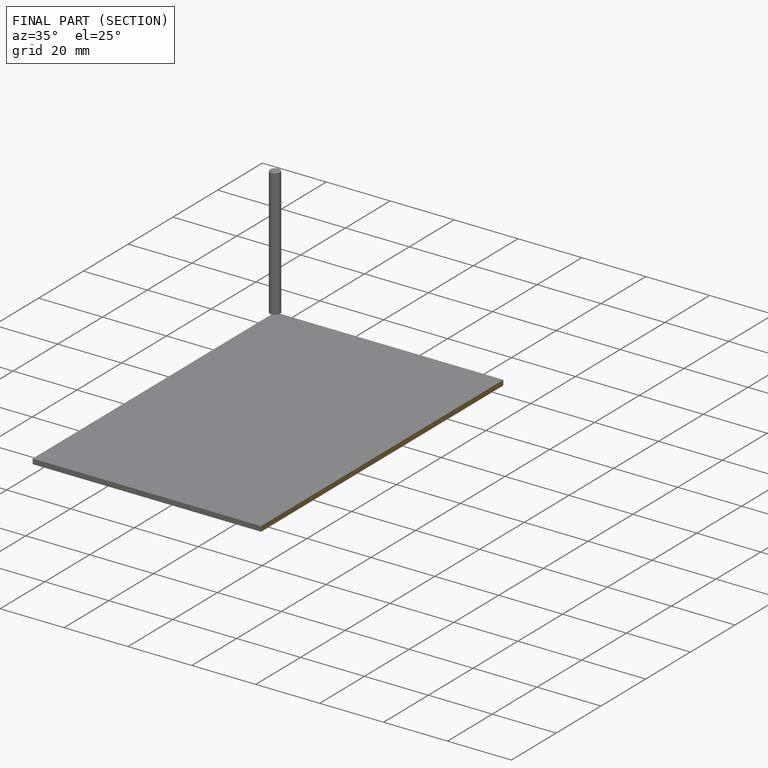
[diagram: finished part — half-section view (interior)]
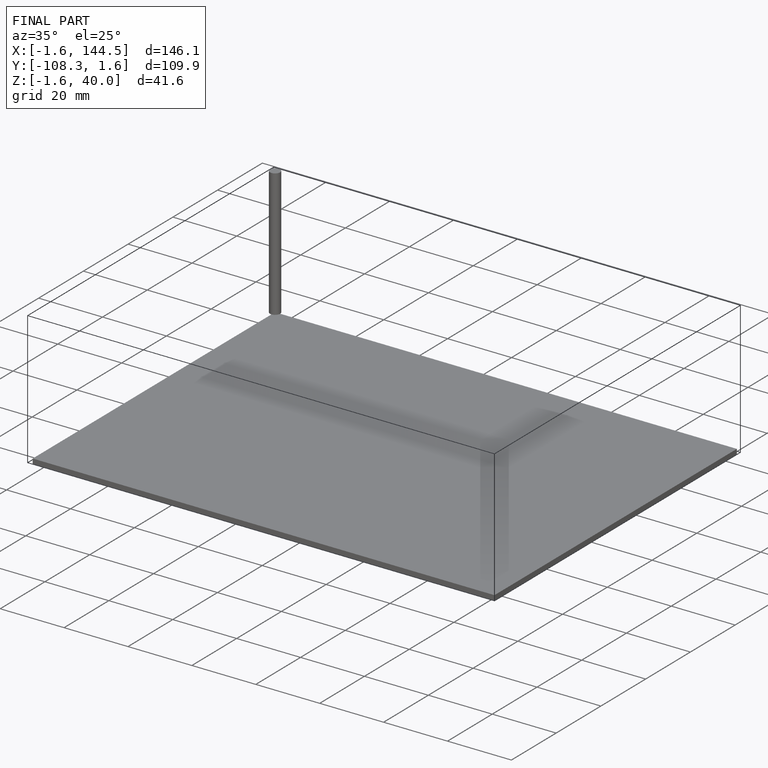
[diagram: finished part — iso view with bounding-box wireframe]
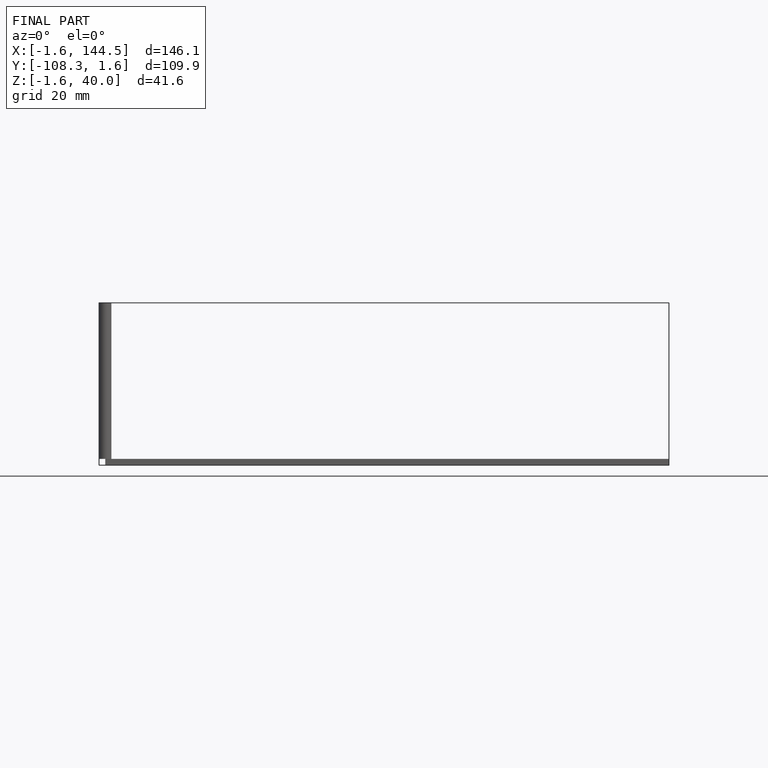
[diagram: finished part — front view with bounding-box wireframe]
